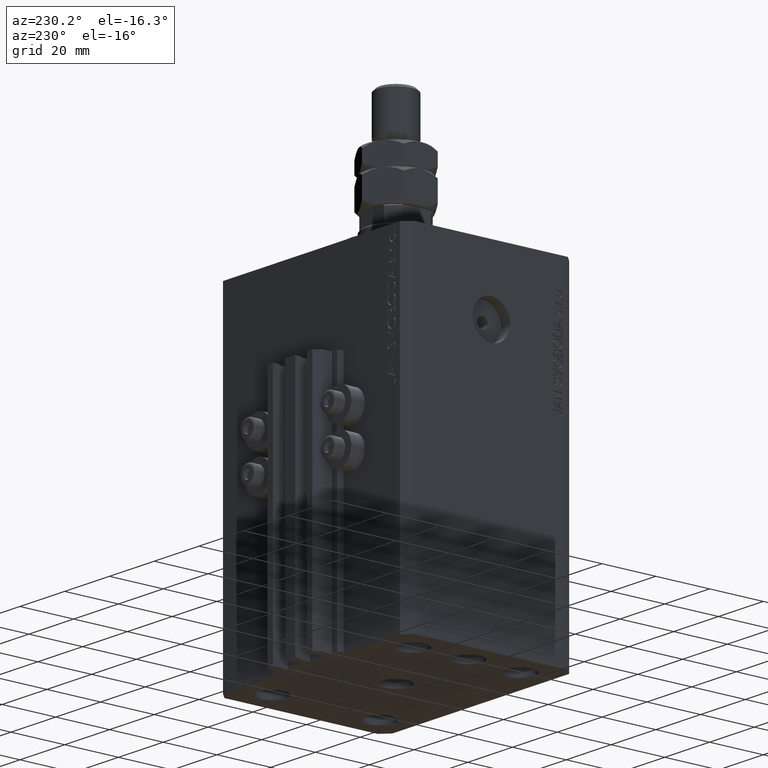
[diagram: clean part render]
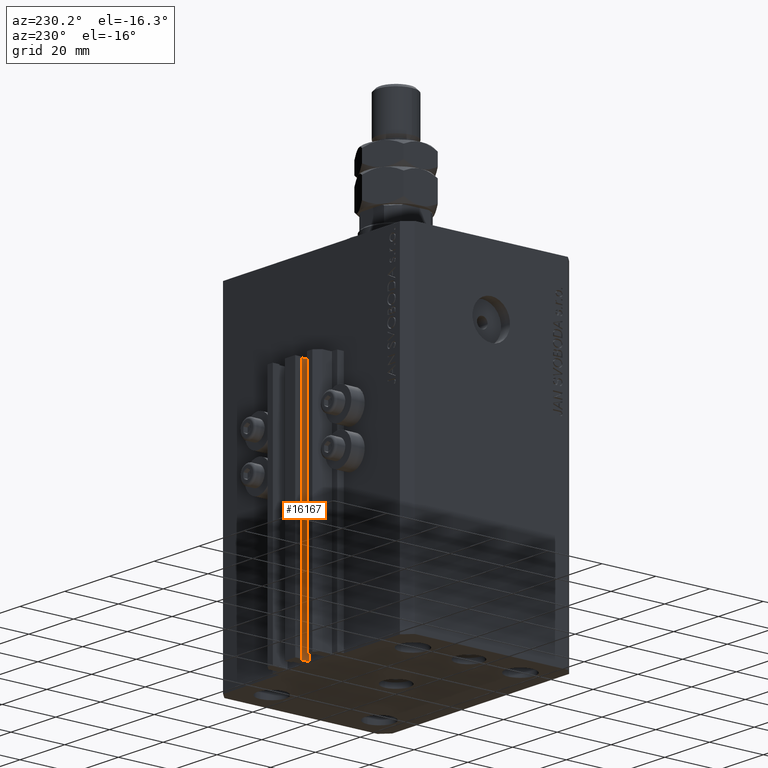
[diagram: same view with one face highlighted and labeled with its STEP entity id]
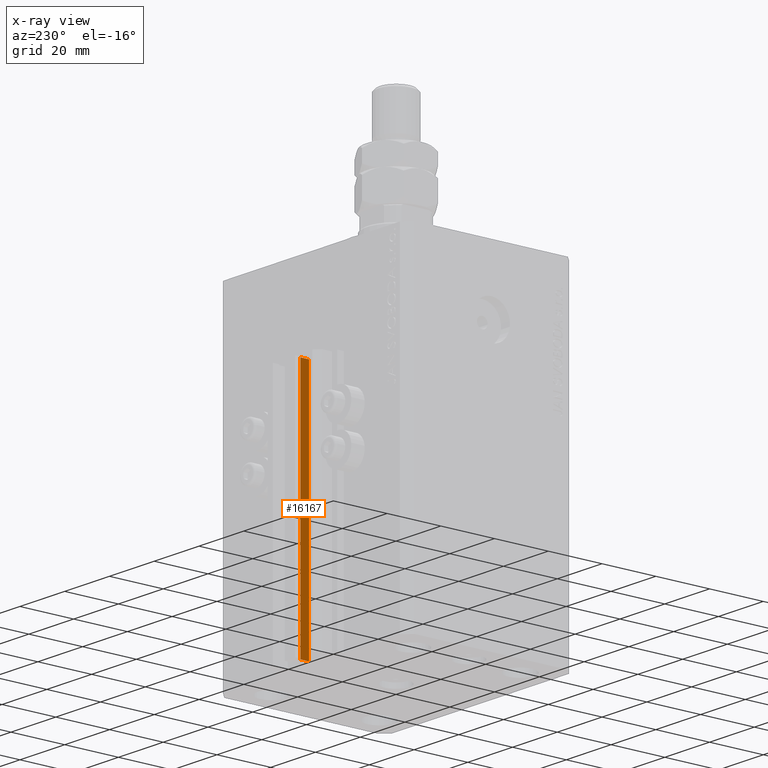
[diagram: x-ray of the same camera — body ghosted, the highlighted face saturated]
A machine part, auxiliary view. The second image highlights one B-rep face of the part: STEP entity #16167.
The next image is the same camera in x-ray: the body ghosted, the highlighted face saturated — about 0% of this face is hidden behind the body in this view.
In plain terms, the highlighted planar face has unit normal (-1, 0, 0).
Its self-contained STEP definition (entity closure, byte-faithful):
#875 = EDGE_CURVE ( 'NONE', #44443, #7408, #38266, .T. ) ;
#2712 = VECTOR ( 'NONE', #38301, 1000.000000000000000 ) ;
#3922 = CARTESIAN_POINT ( 'NONE',  ( -1.600000000000000755, 33.70000000000000284, -123.0000000000000000 ) ) ;
#7408 = VERTEX_POINT ( 'NONE', #47285 ) ;
#8539 = PLANE ( 'NONE',  #28989 ) ;
#8890 = EDGE_CURVE ( 'NONE', #44443, #32609, #45125, .T. ) ;
#11785 = VERTEX_POINT ( 'NONE', #32200 ) ;
#13951 = VECTOR ( 'NONE', #39695, 1000.000000000000000 ) ;
#15556 = ORIENTED_EDGE ( 'NONE', *, *, #19529, .F. ) ;
#16167 = ADVANCED_FACE ( 'NONE', ( #38689 ), #8539, .T. ) ;
#19529 = EDGE_CURVE ( 'NONE', #7408, #11785, #39462, .T. ) ;
#26072 = EDGE_LOOP ( 'NONE', ( #15556, #30810, #41604, #48921 ) ) ;
#28034 = DIRECTION ( 'NONE',  ( -6.776263578034386689E-17, -1.000000000000000000, 0.000000000000000000 ) ) ;
#28989 = AXIS2_PLACEMENT_3D ( 'NONE', #34977, #39171, #28034 ) ;
#30810 = ORIENTED_EDGE ( 'NONE', *, *, #875, .F. ) ;
#32200 = CARTESIAN_POINT ( 'NONE',  ( -1.600000000000000755, 33.70000000000000284, -33.00000000000000000 ) ) ;
#32298 = CARTESIAN_POINT ( 'NONE',  ( -1.600000000000001421, 36.90000000000000568, -123.0000000000000000 ) ) ;
#32609 = VERTEX_POINT ( 'NONE', #41986 ) ;
#34599 = LINE ( 'NONE', #3922, #2712 ) ;
#34977 = CARTESIAN_POINT ( 'NONE',  ( -1.600000000000000533, 36.90000000000000568, -123.0000000000000000 ) ) ;
#35286 = CARTESIAN_POINT ( 'NONE',  ( -1.600000000000001421, 36.90000000000000568, -123.0000000000000000 ) ) ;
#36839 = VECTOR ( 'NONE', #37225, 1000.000000000000000 ) ;
#37225 = DIRECTION ( 'NONE',  ( -6.776263578034385456E-17, -1.000000000000000000, 0.000000000000000000 ) ) ;
#38266 = LINE ( 'NONE', #35286, #40290 ) ;
#38301 = DIRECTION ( 'NONE',  ( 0.000000000000000000, 0.000000000000000000, 1.000000000000000000 ) ) ;
#38689 = FACE_OUTER_BOUND ( 'NONE', #26072, .T. ) ;
#39171 = DIRECTION ( 'NONE',  ( -1.000000000000000000, 6.776263578034386689E-17, 0.000000000000000000 ) ) ;
#39462 = LINE ( 'NONE', #47113, #13951 ) ;
#39695 = DIRECTION ( 'NONE',  ( -6.776263578034385456E-17, -1.000000000000000000, 0.000000000000000000 ) ) ;
#40290 = VECTOR ( 'NONE', #42461, 1000.000000000000000 ) ;
#40927 = CARTESIAN_POINT ( 'NONE',  ( -1.600000000000000533, 36.90000000000000568, -123.0000000000000000 ) ) ;
#41604 = ORIENTED_EDGE ( 'NONE', *, *, #8890, .T. ) ;
#41986 = CARTESIAN_POINT ( 'NONE',  ( -1.600000000000000755, 33.70000000000000284, -123.0000000000000000 ) ) ;
#42461 = DIRECTION ( 'NONE',  ( 0.000000000000000000, 0.000000000000000000, 1.000000000000000000 ) ) ;
#44443 = VERTEX_POINT ( 'NONE', #32298 ) ;
#45125 = LINE ( 'NONE', #40927, #36839 ) ;
#45435 = EDGE_CURVE ( 'NONE', #32609, #11785, #34599, .T. ) ;
#47113 = CARTESIAN_POINT ( 'NONE',  ( -1.600000000000000533, 36.90000000000000568, -33.00000000000000000 ) ) ;
#47285 = CARTESIAN_POINT ( 'NONE',  ( -1.600000000000001421, 36.90000000000000568, -33.00000000000000000 ) ) ;
#48921 = ORIENTED_EDGE ( 'NONE', *, *, #45435, .T. ) ;